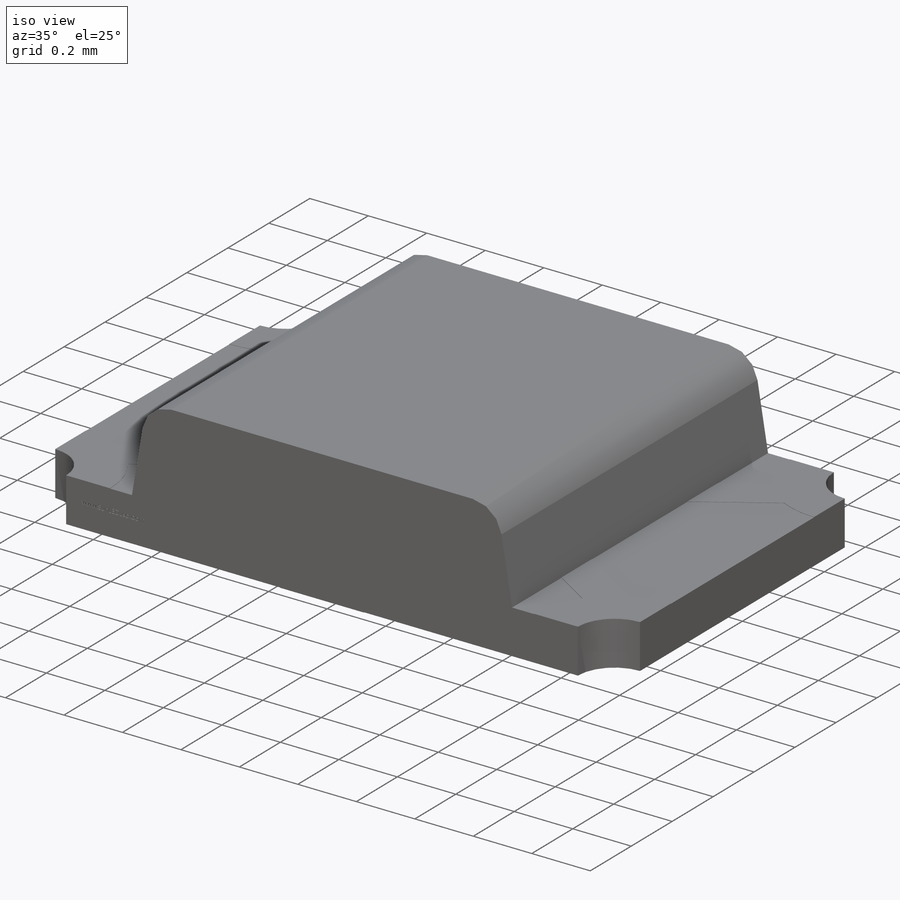
[diagram: iso view]
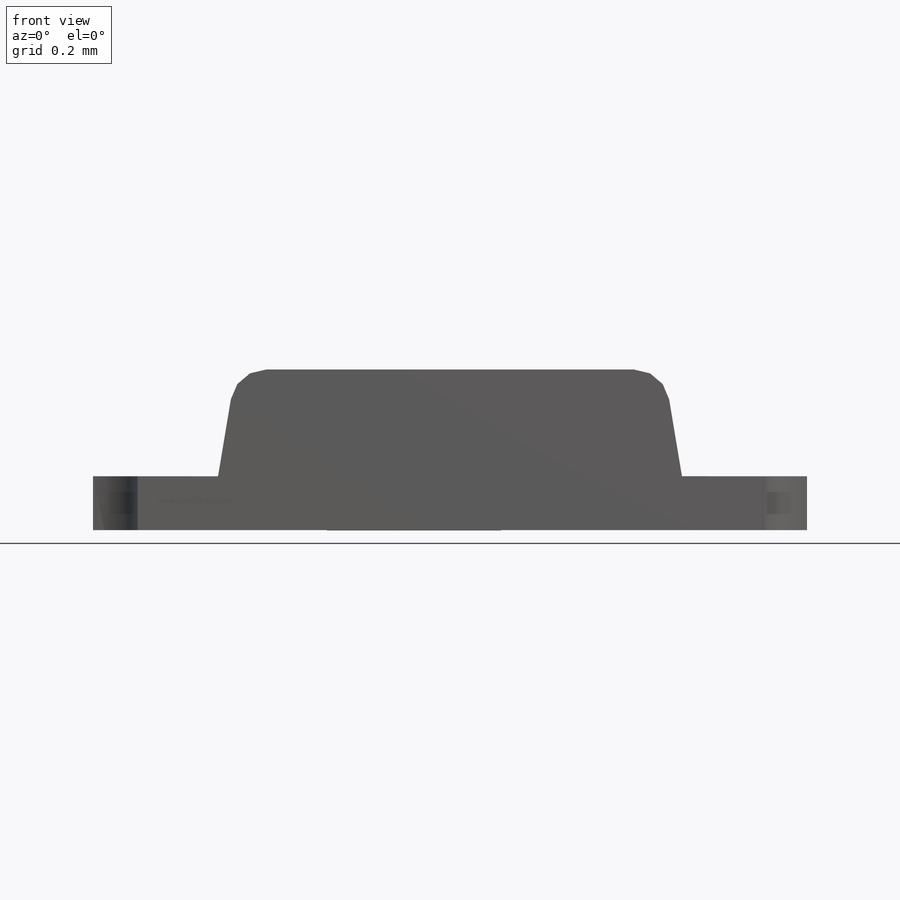
[diagram: front view]
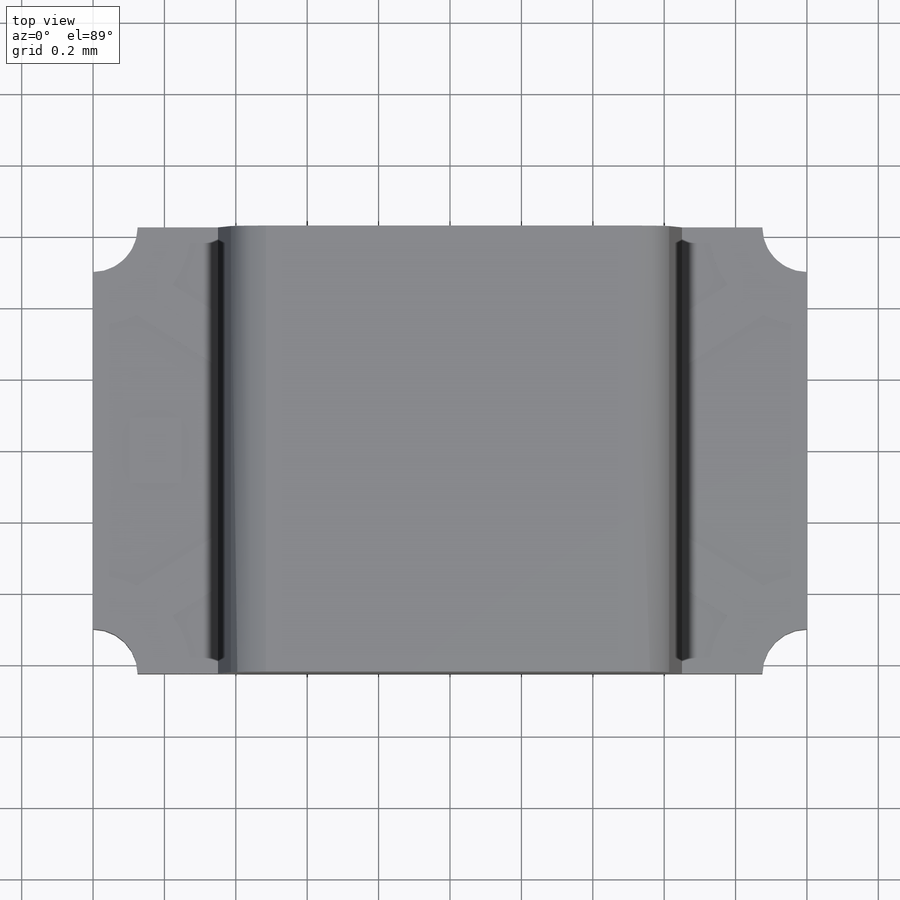
[diagram: top view]
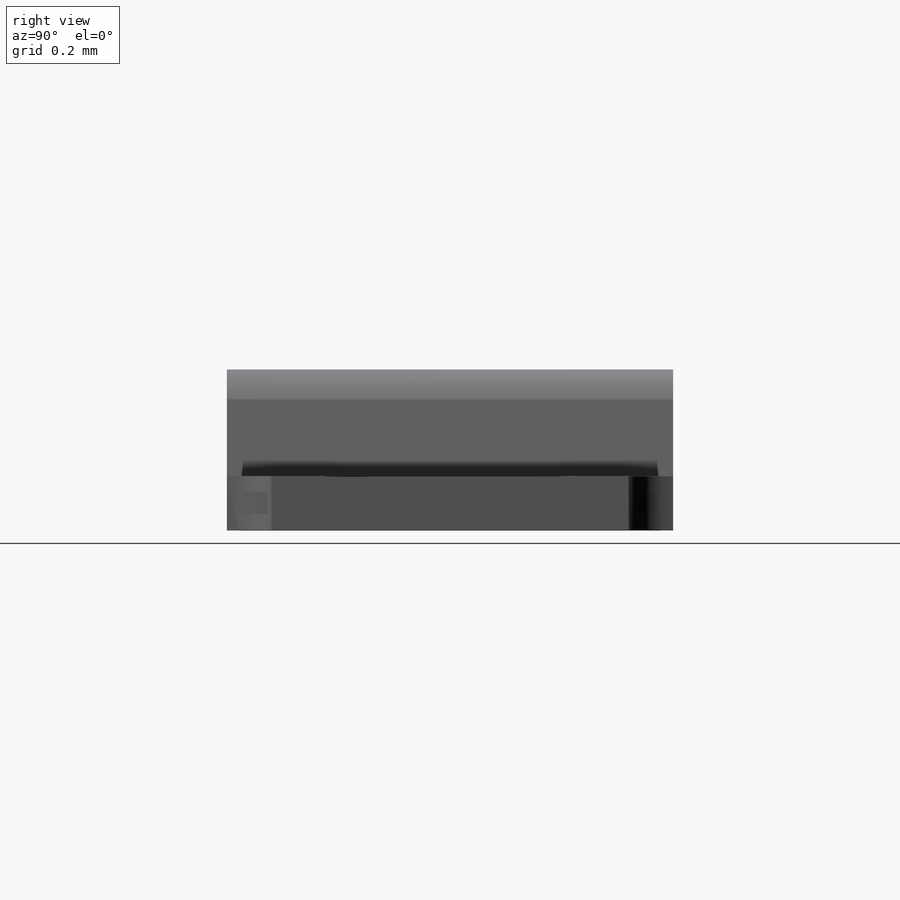
[diagram: right view]
SOLIDWORKS PART (.sldprt)
format: sldprt  version: not decoded by parser v0  size: 921,088 bytes
history: native  units: mm
features: sketch x8, extrude x6, cut_extrude x2, material x1, fillet x1 (+12 scaffold rows collapsed)
feature tree (30):
  scaffold x12  (default folders/planes/origin — collapsed)
  material  "Material <not specified>"
  sketch  "Sketch1"  dims[D6=0.35mm D1=0.15mm D2=2.0mm D3=1.2mm D4=1.3mm D5=0.45mm]
  extrude  "Extrude1"  Depth=1.25mm
  extrude  "Extrude2"  [1 undecoded]
  sketch  "Sketch1<3>"  dims[D1=1.25mm]
  sketch  "Sketch3"  dims[c1.D1=0.25mm c1.D2=0.5mm c1.D3=1.0mm c1.D4=0.5mm c2.D2=0.45mm c2.D5=0.5mm]
  cut_extrude  "Cut-Extrude2"  [1 undecoded]
  extrude  "Extrude4"  [1 undecoded]
  sketch  "Sketch3<3>"  dims[D1=0.001mm D2=0.0001mm]
  sketch  "Sketch4"  dims[c1.D1=0.15mm c1.D2=0.07mm c1.D3=0.4mm c1.D4=0.4mm c2.D2=~0.138138mm c2.D1=0.15mm]
  extrude  "Extrude6"  [1 undecoded]
  sketch  "Sketch4<3>"  dims[D1=0.001mm D2=0.001mm]
  extrude  "Extrude7"  Depth=0.001mm
  sketch  "Sketch5"  dims[D1=0.08mm D2=0.5mm]
  cut_extrude  "Cut-Extrude3"  Depth=0.01mm
  extrude  "Extrude9"  [1 undecoded]
  sketch  "Sketch3<4>"  dims[D1=0.001mm D2=0.001mm]
  fillet  "Fillet1"  Radius=0.1mm
decode coverage: 12 of 17 modeling features carry decoded parameters
note: ~ marks probable driven/reference dimensions
note: 5 parameter values undecoded
summary: no parameter record found for 5 features
note: suppression state not decoded; provenance and decode notes live in map.json
